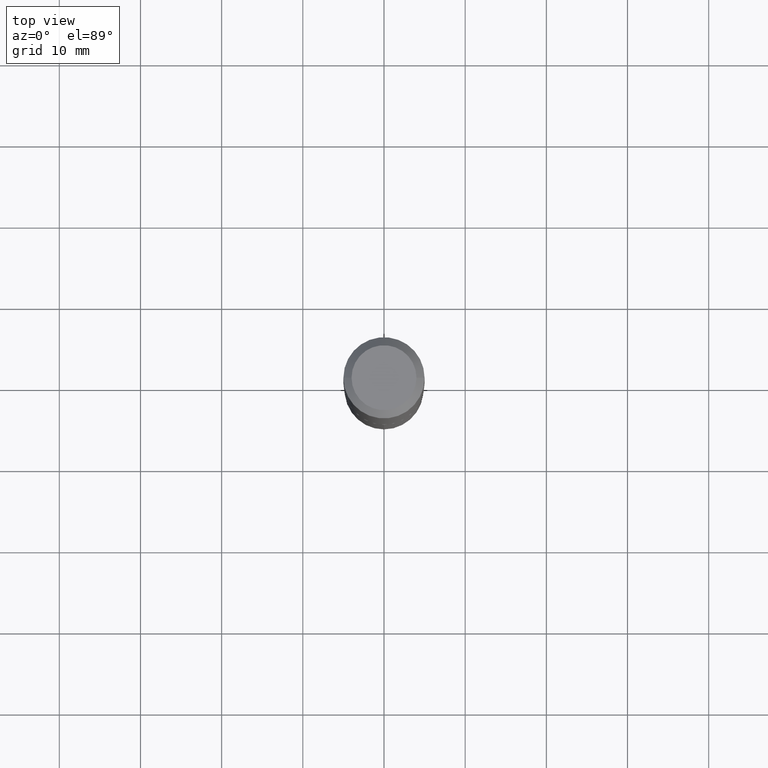
[diagram: clean part render]
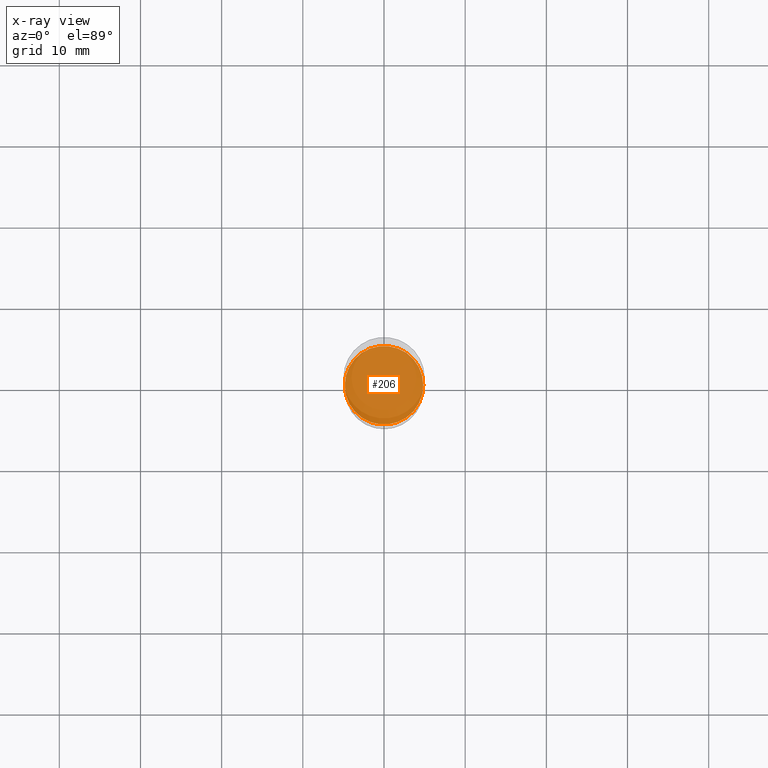
[diagram: x-ray — body ghosted, one internal face saturated and labeled with its STEP entity id]
A machine part, top view, then the same camera in x-ray: the body is ghosted and one INTERNAL B-rep face — a face not visible from any outside direction — is saturated and labeled: STEP entity #206.
In plain terms, the highlighted planar face has unit normal (-0, 0, 1).
Its self-contained STEP definition (entity closure, byte-faithful):
#19 = DIRECTION ( 'NONE',  ( -2.445468806185136597E-29, 3.491481338843145583E-15, 1.000000000000000000 ) ) ;
#53 = DIRECTION ( 'NONE',  ( -2.445468806185136597E-29, 3.491481338843145583E-15, 1.000000000000000000 ) ) ;
#76 = DIRECTION ( 'NONE',  ( -2.438088387897960049E-29, 3.491481338843145188E-15, 1.000000000000000000 ) ) ;
#102 = CIRCLE ( 'NONE', #353, 0.1904500000000000082 ) ;
#106 = DIRECTION ( 'NONE',  ( 1.000000000000000000, -6.982962677686265922E-15, 4.876176775795935793E-29 ) ) ;
#123 = EDGE_CURVE ( 'NONE', #440, #269, #102, .T. ) ;
#148 = PLANE ( 'NONE',  #400 ) ;
#166 = AXIS2_PLACEMENT_3D ( 'NONE', #176, #19, #439 ) ;
#176 = CARTESIAN_POINT ( 'NONE',  ( 5.198822135068982087E-29, -7.422540178246643119E-15, -2.125899999999999679 ) ) ;
#177 = EDGE_LOOP ( 'NONE', ( #355, #435 ) ) ;
#183 = CARTESIAN_POINT ( 'NONE',  ( -0.1904500000000000082, -6.066662310817420267E-15, -2.125899999999999679 ) ) ;
#206 = ADVANCED_FACE ( 'NONE', ( #339 ), #148, .F. ) ;
#269 = VERTEX_POINT ( 'NONE', #321 ) ;
#304 = CARTESIAN_POINT ( 'NONE',  ( 5.198822135068982087E-29, -7.422540178246643119E-15, -2.125899999999999679 ) ) ;
#312 = CIRCLE ( 'NONE', #166, 0.1904500000000000082 ) ;
#321 = CARTESIAN_POINT ( 'NONE',  ( 0.1904500000000000082, -8.752445420211992658E-15, -2.125899999999999679 ) ) ;
#339 = FACE_OUTER_BOUND ( 'NONE', #177, .T. ) ;
#353 = AXIS2_PLACEMENT_3D ( 'NONE', #432, #53, #417 ) ;
#355 = ORIENTED_EDGE ( 'NONE', *, *, #373, .F. ) ;
#373 = EDGE_CURVE ( 'NONE', #269, #440, #312, .T. ) ;
#400 = AXIS2_PLACEMENT_3D ( 'NONE', #304, #76, #106 ) ;
#417 = DIRECTION ( 'NONE',  ( 1.000000000000000000, -6.982962677686271444E-15, 0.000000000000000000 ) ) ;
#432 = CARTESIAN_POINT ( 'NONE',  ( 5.198822135068982087E-29, -7.422540178246643119E-15, -2.125899999999999679 ) ) ;
#435 = ORIENTED_EDGE ( 'NONE', *, *, #123, .F. ) ;
#439 = DIRECTION ( 'NONE',  ( 1.000000000000000000, -6.982962677686271444E-15, 0.000000000000000000 ) ) ;
#440 = VERTEX_POINT ( 'NONE', #183 ) ;